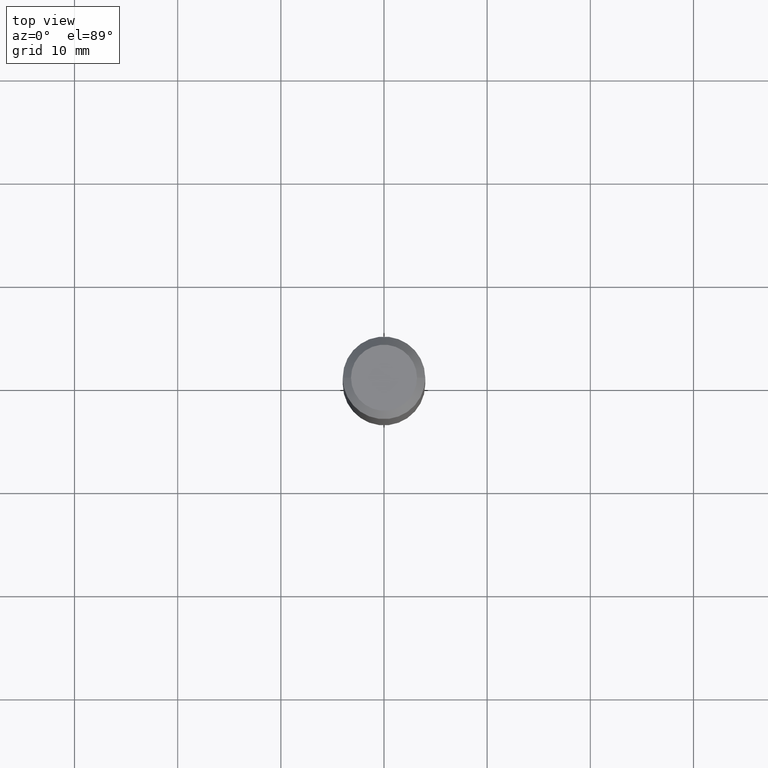
[diagram: clean part render]
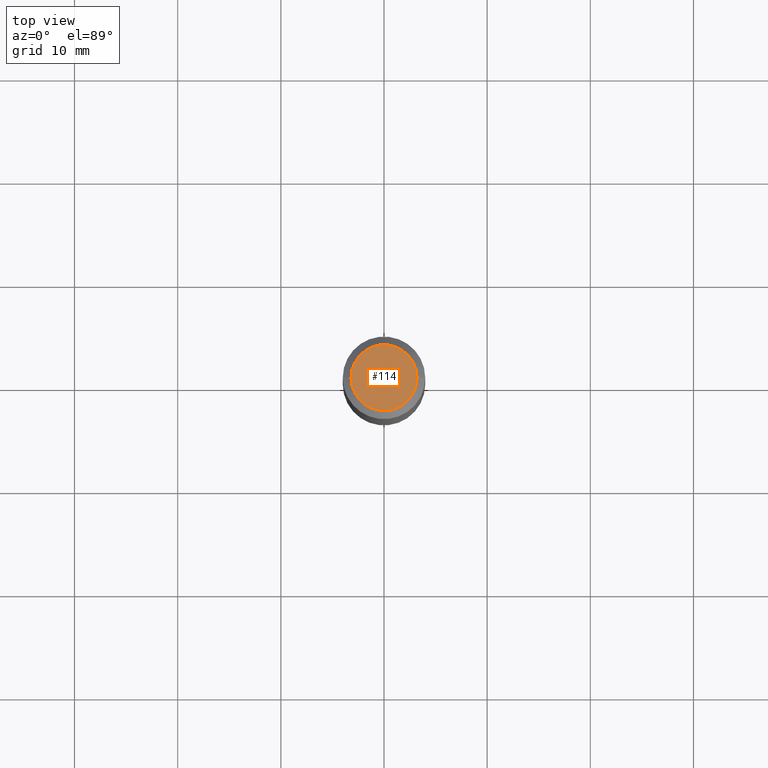
[diagram: same view with one face highlighted and labeled with its STEP entity id]
A machine part, top view. The second image highlights one B-rep face of the part: STEP entity #114.
In plain terms, the highlighted planar face has unit normal (0, -0, -1).
Its self-contained STEP definition (entity closure, byte-faithful):
#10 = EDGE_CURVE ( 'NONE', #255, #508, #46, .T. ) ;
#14 = DIRECTION ( 'NONE',  ( 1.000000000000000000, -6.982962677686265922E-15, 4.876281427513067258E-29 ) ) ;
#46 = CIRCLE ( 'NONE', #73, 0.1260000000000000009 ) ;
#48 = EDGE_LOOP ( 'NONE', ( #126, #463 ) ) ;
#56 = EDGE_CURVE ( 'NONE', #508, #255, #361, .T. ) ;
#73 = AXIS2_PLACEMENT_3D ( 'NONE', #485, #122, #14 ) ;
#82 = DIRECTION ( 'NONE',  ( -2.445468806185136597E-29, 3.491481338843145583E-15, 1.000000000000000000 ) ) ;
#114 = ADVANCED_FACE ( 'NONE', ( #247 ), #297, .F. ) ;
#122 = DIRECTION ( 'NONE',  ( -2.445468806185136597E-29, 3.491481338843145583E-15, 1.000000000000000000 ) ) ;
#126 = ORIENTED_EDGE ( 'NONE', *, *, #10, .T. ) ;
#132 = CARTESIAN_POINT ( 'NONE',  ( -4.719860820353096954E-47, 6.738710358733626979E-33, 1.930043355456227940E-18 ) ) ;
#142 = CARTESIAN_POINT ( 'NONE',  ( -0.1260000000000000009, 9.348441284752484904E-16, 3.860086710906110326E-18 ) ) ;
#159 = CARTESIAN_POINT ( 'NONE',  ( -9.439721640706193907E-47, 1.347742071746725396E-32, 3.860086710912455880E-18 ) ) ;
#169 = AXIS2_PLACEMENT_3D ( 'NONE', #132, #212, #465 ) ;
#212 = DIRECTION ( 'NONE',  ( 2.438088387897960049E-29, -3.491481338843145188E-15, -1.000000000000000000 ) ) ;
#247 = FACE_OUTER_BOUND ( 'NONE', #48, .T. ) ;
#255 = VERTEX_POINT ( 'NONE', #142 ) ;
#297 = PLANE ( 'NONE',  #169 ) ;
#317 = CARTESIAN_POINT ( 'NONE',  ( 0.1260000000000000009, -1.027466422270894443E-15, 3.860086710919124220E-18 ) ) ;
#361 = CIRCLE ( 'NONE', #394, 0.1260000000000000009 ) ;
#394 = AXIS2_PLACEMENT_3D ( 'NONE', #159, #82, #420 ) ;
#420 = DIRECTION ( 'NONE',  ( 1.000000000000000000, -6.982962677686265922E-15, 4.876281427513067258E-29 ) ) ;
#463 = ORIENTED_EDGE ( 'NONE', *, *, #56, .T. ) ;
#465 = DIRECTION ( 'NONE',  ( -1.000000000000000000, 6.982962677686265922E-15, -4.876176775795935793E-29 ) ) ;
#485 = CARTESIAN_POINT ( 'NONE',  ( -9.439721640706193907E-47, 1.347742071746725396E-32, 3.860086710912455880E-18 ) ) ;
#508 = VERTEX_POINT ( 'NONE', #317 ) ;